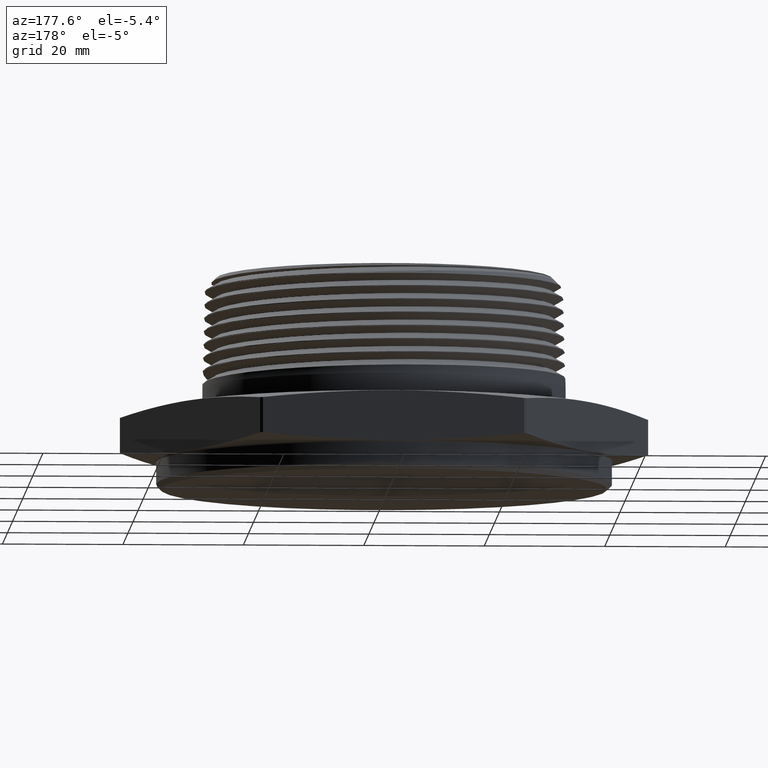
[diagram: clean part render]
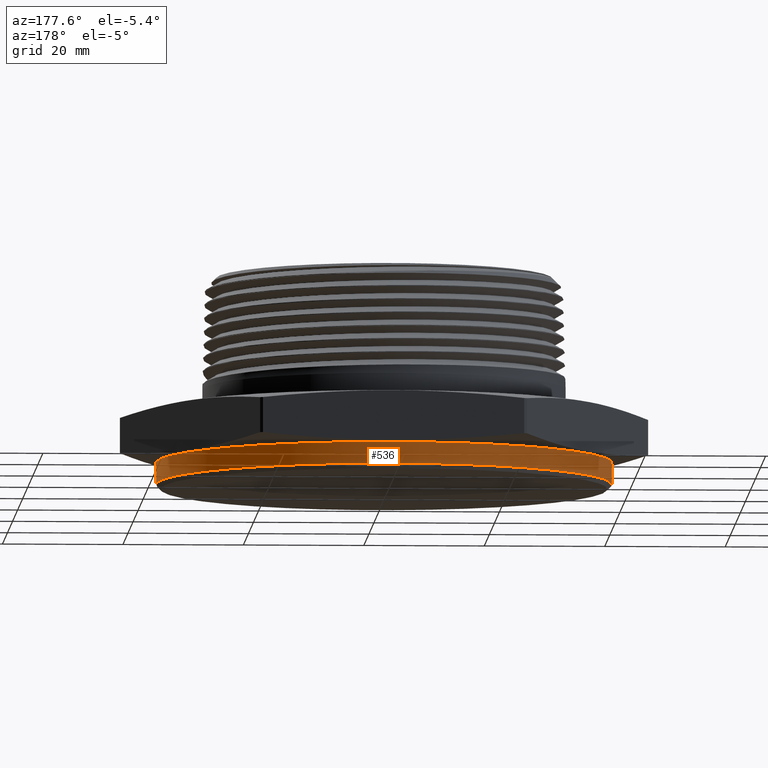
[diagram: same view with one face highlighted and labeled with its STEP entity id]
A machine part, auxiliary view. The second image highlights one B-rep face of the part: STEP entity #536.
In plain terms, the highlighted cylindrical surface (partial cylindrical patch) has radius 37.846 mm, axis along (-0, -0, 1).
Its self-contained STEP definition (entity closure, byte-faithful):
#536 = ADVANCED_FACE ( 'NONE', ( #829 ), #831, .T. ) ;
#595 = VERTEX_POINT ( 'NONE', #7021 ) ;
#604 = VERTEX_POINT ( 'NONE', #7009 ) ;
#613 = VERTEX_POINT ( 'NONE', #6998 ) ;
#633 = VERTEX_POINT ( 'NONE', #6975 ) ;
#762 = EDGE_LOOP ( 'NONE', ( #795, #796, #797, #798 ) ) ;
#795 = ORIENTED_EDGE ( 'NONE', *, *, #3675, .T. ) ;
#796 = ORIENTED_EDGE ( 'NONE', *, *, #3665, .T. ) ;
#797 = ORIENTED_EDGE ( 'NONE', *, *, #3664, .T. ) ;
#798 = ORIENTED_EDGE ( 'NONE', *, *, #3663, .F. ) ;
#829 = FACE_OUTER_BOUND ( 'NONE', #762, .T. ) ;
#831 = CYLINDRICAL_SURFACE ( 'NONE', #3714, 1.490000000000000400 ) ;
#3663 = EDGE_CURVE ( 'NONE', #595, #633, #6020, .T. ) ;
#3664 = EDGE_CURVE ( 'NONE', #604, #633, #6021, .T. ) ;
#3665 = EDGE_CURVE ( 'NONE', #613, #604, #6014, .T. ) ;
#3675 = EDGE_CURVE ( 'NONE', #595, #613, #6033, .T. ) ;
#3714 = AXIS2_PLACEMENT_3D ( 'NONE', #7873, #7872, #7875 ) ;
#3779 = AXIS2_PLACEMENT_3D ( 'NONE', #6754, #6755, #6756 ) ;
#3788 = AXIS2_PLACEMENT_3D ( 'NONE', #6787, #6788, #6789 ) ;
#6014 = LINE ( 'NONE', #6753, #6025 ) ;
#6020 = LINE ( 'NONE', #6744, #6022 ) ;
#6021 = CIRCLE ( 'NONE', #3779, 1.490000000000000400 ) ;
#6022 = VECTOR ( 'NONE', #6745, 39.37007874015748100 ) ;
#6025 = VECTOR ( 'NONE', #6749, 39.37007874015748100 ) ;
#6033 = CIRCLE ( 'NONE', #3788, 1.490000000000000400 ) ;
#6744 = CARTESIAN_POINT ( 'NONE',  ( 1.490000000000000400, 0.0000000000000000000, -0.1799999999999999900 ) ) ;
#6745 = DIRECTION ( 'NONE',  ( -0.0000000000000000000, -0.0000000000000000000, 1.000000000000000000 ) ) ;
#6749 = DIRECTION ( 'NONE',  ( -0.0000000000000000000, -0.0000000000000000000, 1.000000000000000000 ) ) ;
#6753 = CARTESIAN_POINT ( 'NONE',  ( -1.490000000000000400, 1.824723730729556900E-016, -0.1799999999999999900 ) ) ;
#6754 = CARTESIAN_POINT ( 'NONE',  ( 0.0000000000000000000, 0.0000000000000000000, -0.008097840331950540200 ) ) ;
#6755 = DIRECTION ( 'NONE',  ( -6.274932739761922300E-017, -0.0000000000000000000, -1.000000000000000000 ) ) ;
#6756 = DIRECTION ( 'NONE',  ( -1.000000000000000000, 0.0000000000000000000, 6.302501663235504600E-017 ) ) ;
#6787 = CARTESIAN_POINT ( 'NONE',  ( 0.0000000000000000000, 0.0000000000000000000, -0.1500000000000016900 ) ) ;
#6788 = DIRECTION ( 'NONE',  ( 0.0000000000000000000, 0.0000000000000000000, 1.000000000000000000 ) ) ;
#6789 = DIRECTION ( 'NONE',  ( -1.000000000000000000, 0.0000000000000000000, 0.0000000000000000000 ) ) ;
#6975 = CARTESIAN_POINT ( 'NONE',  ( 1.490000000000000400, 0.0000000000000000000, -0.008097840331950633900 ) ) ;
#6998 = CARTESIAN_POINT ( 'NONE',  ( -1.490000000000000400, 1.824723730729556900E-016, -0.1500000000000016900 ) ) ;
#7009 = CARTESIAN_POINT ( 'NONE',  ( -1.490000000000000400, 1.824723730729556900E-016, -0.008097840331950446500 ) ) ;
#7021 = CARTESIAN_POINT ( 'NONE',  ( 1.490000000000000400, 0.0000000000000000000, -0.1500000000000016900 ) ) ;
#7872 = DIRECTION ( 'NONE',  ( -0.0000000000000000000, -0.0000000000000000000, 1.000000000000000000 ) ) ;
#7873 = CARTESIAN_POINT ( 'NONE',  ( 0.0000000000000000000, 0.0000000000000000000, -0.1799999999999999900 ) ) ;
#7875 = DIRECTION ( 'NONE',  ( 1.000000000000000000, 0.0000000000000000000, 0.0000000000000000000 ) ) ;